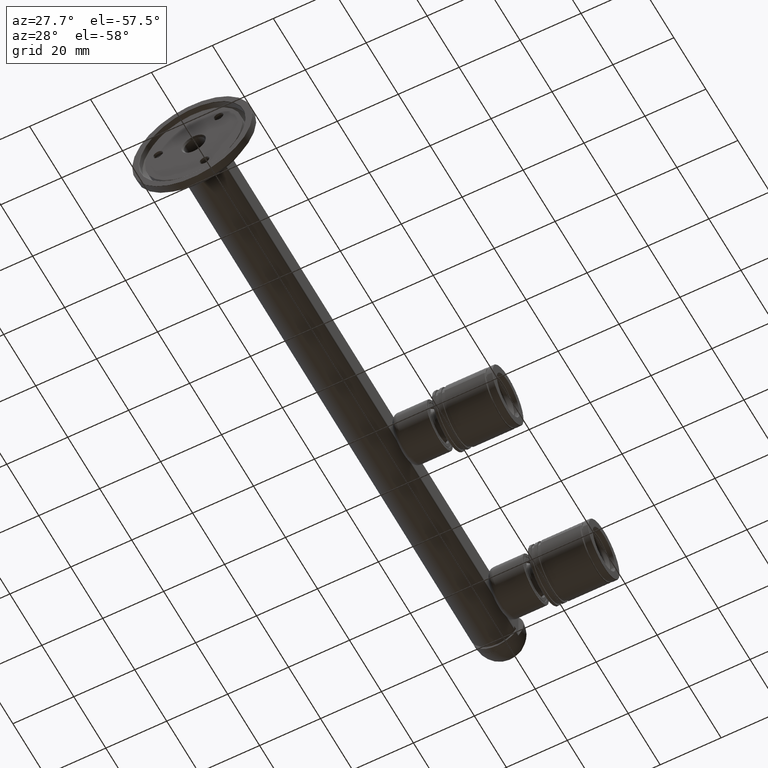
[diagram: clean part render]
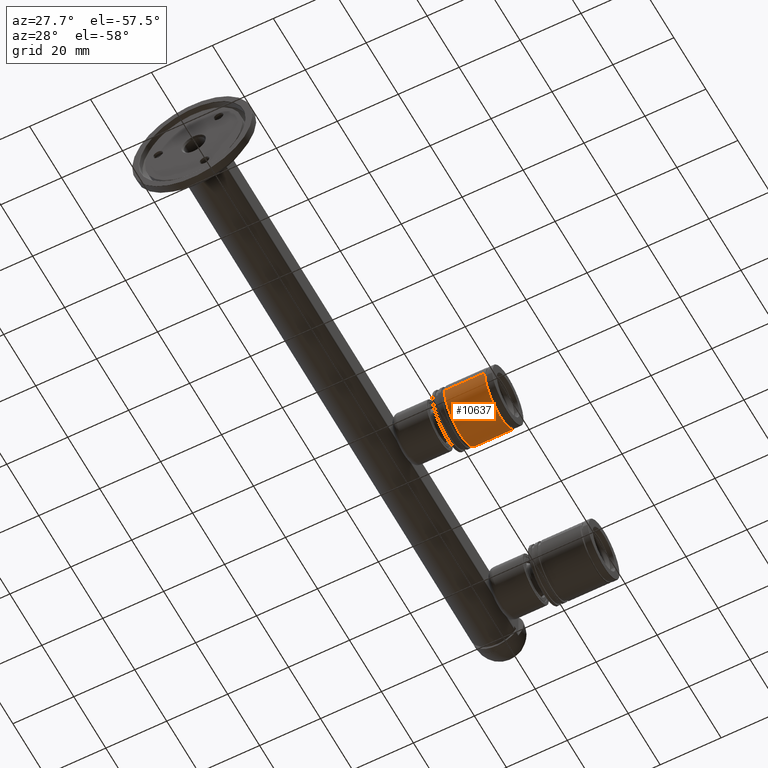
[diagram: same view with one face highlighted and labeled with its STEP entity id]
A machine part, auxiliary view. The second image highlights one B-rep face of the part: STEP entity #10637.
In plain terms, the highlighted cylindrical surface (edge-blend (fillet) strip) has radius 9.75 mm, axis along (-1, -0, -0).
Its self-contained STEP definition (entity closure, byte-faithful):
#23 = LINE ( 'NONE', #14760, #3422 ) ;
#380 = VECTOR ( 'NONE', #15764, 1000.000000000000000 ) ;
#566 = DIRECTION ( 'NONE',  ( 1.000000000000000000, 0.000000000000000000, 0.000000000000000000 ) ) ;
#652 = EDGE_CURVE ( 'NONE', #17448, #3034, #23, .T. ) ;
#1572 = DIRECTION ( 'NONE',  ( -7.981960134060291135E-20, -1.000000000000000000, -0.000000000000000000 ) ) ;
#3034 = VERTEX_POINT ( 'NONE', #8783 ) ;
#3422 = VECTOR ( 'NONE', #1572, 1000.000000000000000 ) ;
#3795 = CARTESIAN_POINT ( 'NONE',  ( 9.750000000000000000, 7.104649116487930652E-15, 0.000000000000000000 ) ) ;
#4902 = AXIS2_PLACEMENT_3D ( 'NONE', #18068, #9261, #13744 ) ;
#5330 = DIRECTION ( 'NONE',  ( 1.000000000000000000, -7.981960134067063186E-20, 0.000000000000000000 ) ) ;
#5668 = CYLINDRICAL_SURFACE ( 'NONE', #16639, 9.750000000000005329 ) ;
#5824 = CARTESIAN_POINT ( 'NONE',  ( 9.750000000000000000, 23.16934397916142174, 0.000000000000000000 ) ) ;
#6086 = CARTESIAN_POINT ( 'NONE',  ( 9.750000000000000000, 9.969343979161408242, 0.000000000000000000 ) ) ;
#6307 = DIRECTION ( 'NONE',  ( -7.981960134060291135E-20, -1.000000000000000000, -0.000000000000000000 ) ) ;
#6344 = CIRCLE ( 'NONE', #6498, 9.750000000000005329 ) ;
#6381 = CIRCLE ( 'NONE', #4902, 9.750000000000005329 ) ;
#6498 = AXIS2_PLACEMENT_3D ( 'NONE', #10523, #6307, #566 ) ;
#6736 = EDGE_LOOP ( 'NONE', ( #17221, #11686, #10343, #11960 ) ) ;
#7631 = VERTEX_POINT ( 'NONE', #6086 ) ;
#8783 = CARTESIAN_POINT ( 'NONE',  ( -9.750000000000010658, 9.969343979161408242, 1.194030629168670061E-15 ) ) ;
#9261 = DIRECTION ( 'NONE',  ( -7.981960134247561340E-20, -1.000000000000000000, -0.000000000000000000 ) ) ;
#9764 = DIRECTION ( 'NONE',  ( -7.981960134060291135E-20, -1.000000000000000000, -0.000000000000000000 ) ) ;
#10343 = ORIENTED_EDGE ( 'NONE', *, *, #12203, .T. ) ;
#10349 = EDGE_CURVE ( 'NONE', #17448, #18595, #6381, .T. ) ;
#10523 = CARTESIAN_POINT ( 'NONE',  ( -5.328274769138707494E-15, 9.969343979161408242, 0.000000000000000000 ) ) ;
#10637 = ADVANCED_FACE ( 'NONE', ( #13956 ), #5668, .T. ) ;
#11686 = ORIENTED_EDGE ( 'NONE', *, *, #10349, .T. ) ;
#11713 = EDGE_CURVE ( 'NONE', #3034, #7631, #6344, .T. ) ;
#11960 = ORIENTED_EDGE ( 'NONE', *, *, #11713, .F. ) ;
#12203 = EDGE_CURVE ( 'NONE', #18595, #7631, #14869, .T. ) ;
#12953 = CARTESIAN_POINT ( 'NONE',  ( -9.750000000000010658, 23.16934397916142174, 1.194030629168670061E-15 ) ) ;
#13744 = DIRECTION ( 'NONE',  ( 1.000000000000000000, 0.000000000000000000, 0.000000000000000000 ) ) ;
#13956 = FACE_OUTER_BOUND ( 'NONE', #6736, .T. ) ;
#14335 = CARTESIAN_POINT ( 'NONE',  ( -5.329070518200751394E-15, 7.105427357601001859E-15, 0.000000000000000000 ) ) ;
#14760 = CARTESIAN_POINT ( 'NONE',  ( -9.750000000000010658, 7.106205598714073854E-15, 1.194030629168670061E-15 ) ) ;
#14869 = LINE ( 'NONE', #3795, #380 ) ;
#15764 = DIRECTION ( 'NONE',  ( -7.981960134060291135E-20, -1.000000000000000000, -0.000000000000000000 ) ) ;
#16639 = AXIS2_PLACEMENT_3D ( 'NONE', #14335, #9764, #5330 ) ;
#17221 = ORIENTED_EDGE ( 'NONE', *, *, #652, .F. ) ;
#17448 = VERTEX_POINT ( 'NONE', #12953 ) ;
#18068 = CARTESIAN_POINT ( 'NONE',  ( -5.327221150401011529E-15, 23.16934397916142174, 0.000000000000000000 ) ) ;
#18595 = VERTEX_POINT ( 'NONE', #5824 ) ;